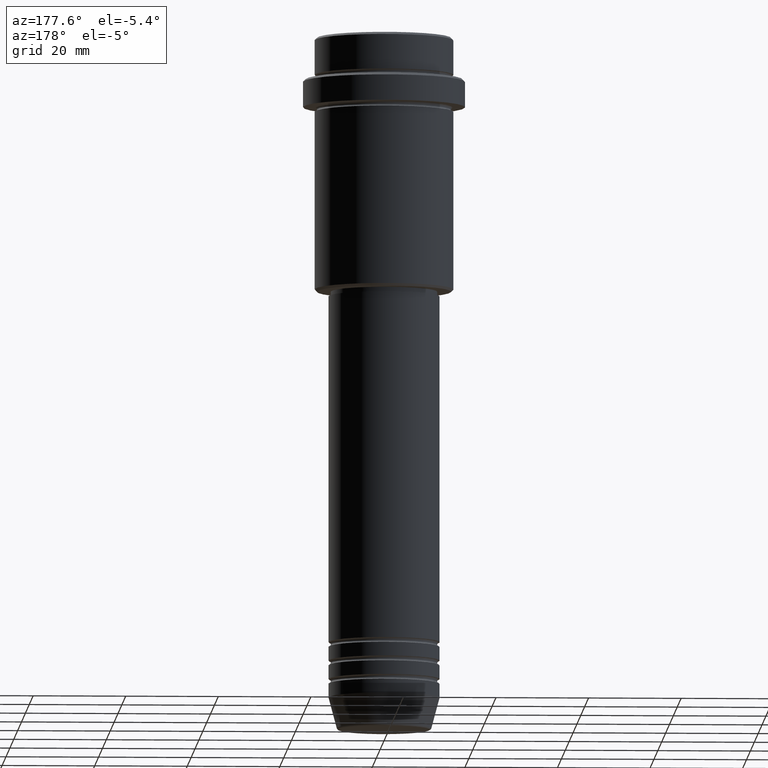
[diagram: clean part render]
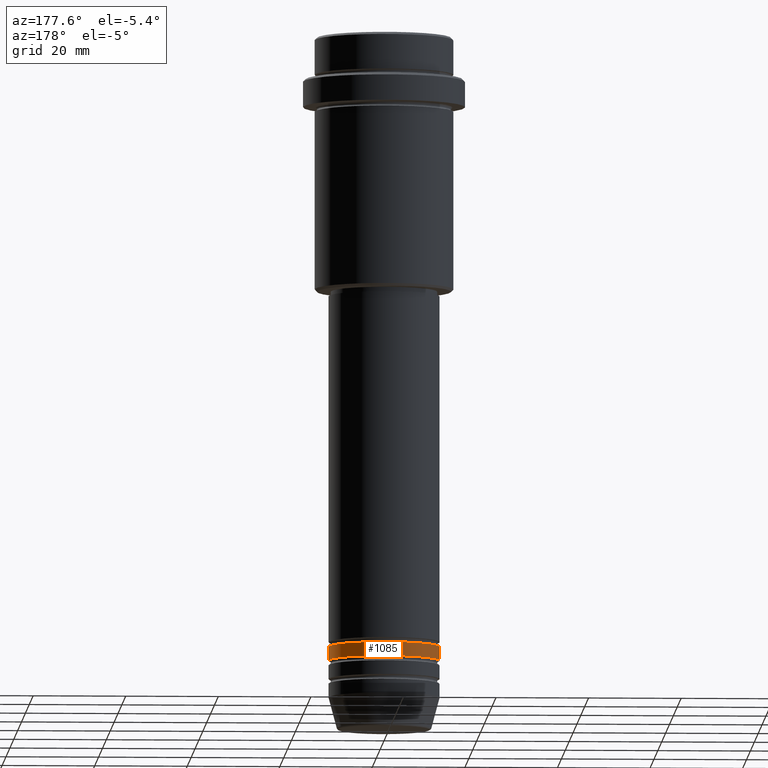
[diagram: same view with one face highlighted and labeled with its STEP entity id]
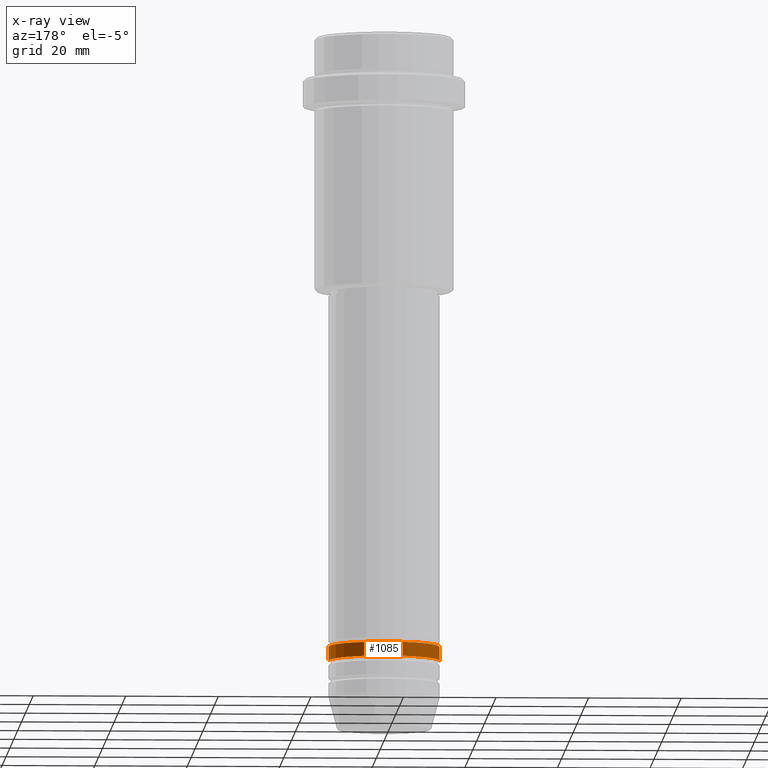
[diagram: x-ray of the same camera — body ghosted, the highlighted face saturated]
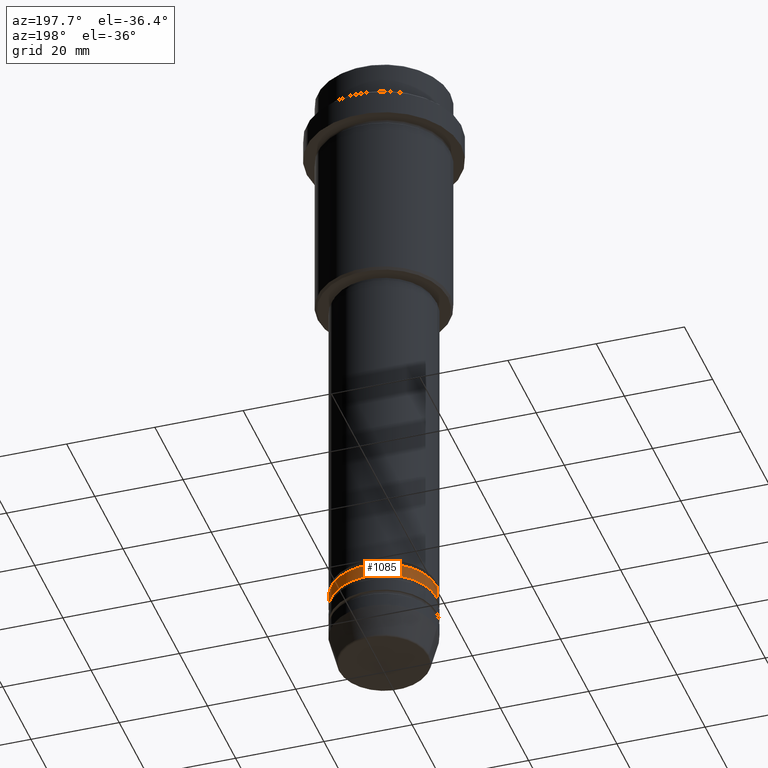
[diagram: same view with one face highlighted and labeled with its STEP entity id]
A machine part, auxiliary view. The second image highlights one B-rep face of the part: STEP entity #1085.
The next image is the same camera in x-ray: the body ghosted, the highlighted face saturated — about 0% of this face is hidden behind the body in this view.
A second angle (auxiliary view) of the same face is appended — the face is thin or edge-on in the first view.
In plain terms, the highlighted cylindrical surface (partial cylindrical patch) has radius 12 mm, axis along (-0, -0, 1).
Its self-contained STEP definition (entity closure, byte-faithful):
#24 = ORIENTED_EDGE ( 'NONE', *, *, #555, .F. ) ;
#43 = EDGE_CURVE ( 'NONE', #810, #1129, #60, .T. ) ;
#60 = LINE ( 'NONE', #816, #443 ) ;
#62 = DIRECTION ( 'NONE',  ( -0.000000000000000000, -0.000000000000000000, 1.000000000000000000 ) ) ;
#109 = DIRECTION ( 'NONE',  ( -0.000000000000000000, -0.000000000000000000, 1.000000000000000000 ) ) ;
#157 = EDGE_LOOP ( 'NONE', ( #866, #519, #24, #360 ) ) ;
#205 = CARTESIAN_POINT ( 'NONE',  ( -12.00000000000000000, 1.469576158976823947E-15, -131.9999999999998579 ) ) ;
#287 = CIRCLE ( 'NONE', #1263, 12.00000000000000000 ) ;
#291 = DIRECTION ( 'NONE',  ( -0.000000000000000000, -0.000000000000000000, 1.000000000000000000 ) ) ;
#295 = LINE ( 'NONE', #618, #560 ) ;
#360 = ORIENTED_EDGE ( 'NONE', *, *, #43, .F. ) ;
#443 = VECTOR ( 'NONE', #716, 1000.000000000000000 ) ;
#444 = CARTESIAN_POINT ( 'NONE',  ( -12.00000000000000000, 1.469576158976823947E-15, -134.9999999999998579 ) ) ;
#519 = ORIENTED_EDGE ( 'NONE', *, *, #1102, .T. ) ;
#524 = CARTESIAN_POINT ( 'NONE',  ( 12.00000000000000000, 0.000000000000000000, -134.9999999999998579 ) ) ;
#552 = DIRECTION ( 'NONE',  ( 1.000000000000000000, 0.000000000000000000, 0.000000000000000000 ) ) ;
#555 = EDGE_CURVE ( 'NONE', #1129, #756, #877, .T. ) ;
#560 = VECTOR ( 'NONE', #62, 1000.000000000000000 ) ;
#618 = CARTESIAN_POINT ( 'NONE',  ( -12.00000000000000000, 1.469576158976823947E-15, 0.000000000000000000 ) ) ;
#661 = FACE_OUTER_BOUND ( 'NONE', #157, .T. ) ;
#663 = CARTESIAN_POINT ( 'NONE',  ( 0.000000000000000000, 0.000000000000000000, -131.9999999999998579 ) ) ;
#691 = DIRECTION ( 'NONE',  ( -0.000000000000000000, -0.000000000000000000, 1.000000000000000000 ) ) ;
#716 = DIRECTION ( 'NONE',  ( -0.000000000000000000, -0.000000000000000000, 1.000000000000000000 ) ) ;
#756 = VERTEX_POINT ( 'NONE', #205 ) ;
#810 = VERTEX_POINT ( 'NONE', #524 ) ;
#816 = CARTESIAN_POINT ( 'NONE',  ( 12.00000000000000000, 0.000000000000000000, 0.000000000000000000 ) ) ;
#844 = CYLINDRICAL_SURFACE ( 'NONE', #1374, 12.00000000000000000 ) ;
#866 = ORIENTED_EDGE ( 'NONE', *, *, #911, .T. ) ;
#877 = CIRCLE ( 'NONE', #1216, 12.00000000000000000 ) ;
#911 = EDGE_CURVE ( 'NONE', #810, #1034, #287, .T. ) ;
#915 = DIRECTION ( 'NONE',  ( 1.000000000000000000, 0.000000000000000000, 0.000000000000000000 ) ) ;
#926 = CARTESIAN_POINT ( 'NONE',  ( 0.000000000000000000, 0.000000000000000000, 0.000000000000000000 ) ) ;
#1034 = VERTEX_POINT ( 'NONE', #444 ) ;
#1085 = ADVANCED_FACE ( 'NONE', ( #661 ), #844, .T. ) ;
#1102 = EDGE_CURVE ( 'NONE', #1034, #756, #295, .T. ) ;
#1115 = CARTESIAN_POINT ( 'NONE',  ( 0.000000000000000000, 0.000000000000000000, -134.9999999999998579 ) ) ;
#1129 = VERTEX_POINT ( 'NONE', #1177 ) ;
#1168 = DIRECTION ( 'NONE',  ( 1.000000000000000000, 0.000000000000000000, 0.000000000000000000 ) ) ;
#1177 = CARTESIAN_POINT ( 'NONE',  ( 12.00000000000000000, 0.000000000000000000, -131.9999999999998579 ) ) ;
#1216 = AXIS2_PLACEMENT_3D ( 'NONE', #663, #109, #552 ) ;
#1263 = AXIS2_PLACEMENT_3D ( 'NONE', #1115, #691, #915 ) ;
#1374 = AXIS2_PLACEMENT_3D ( 'NONE', #926, #291, #1168 ) ;